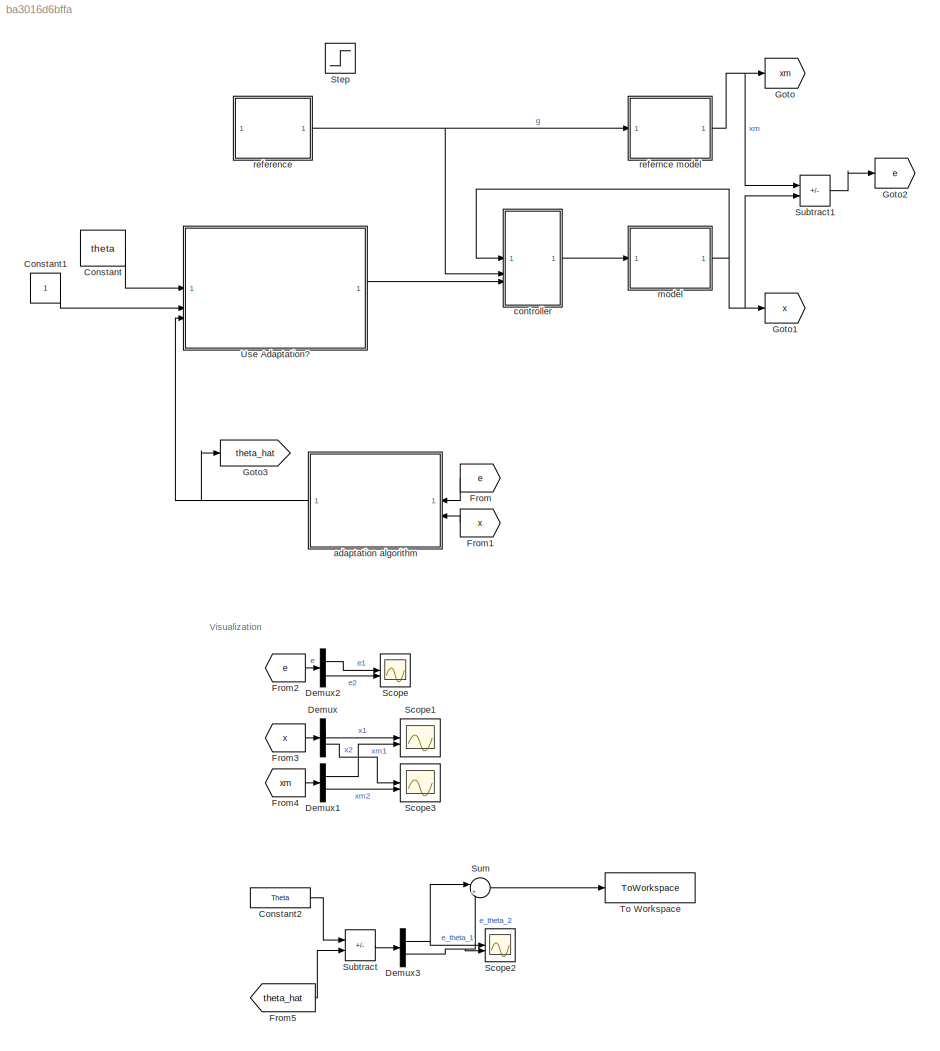
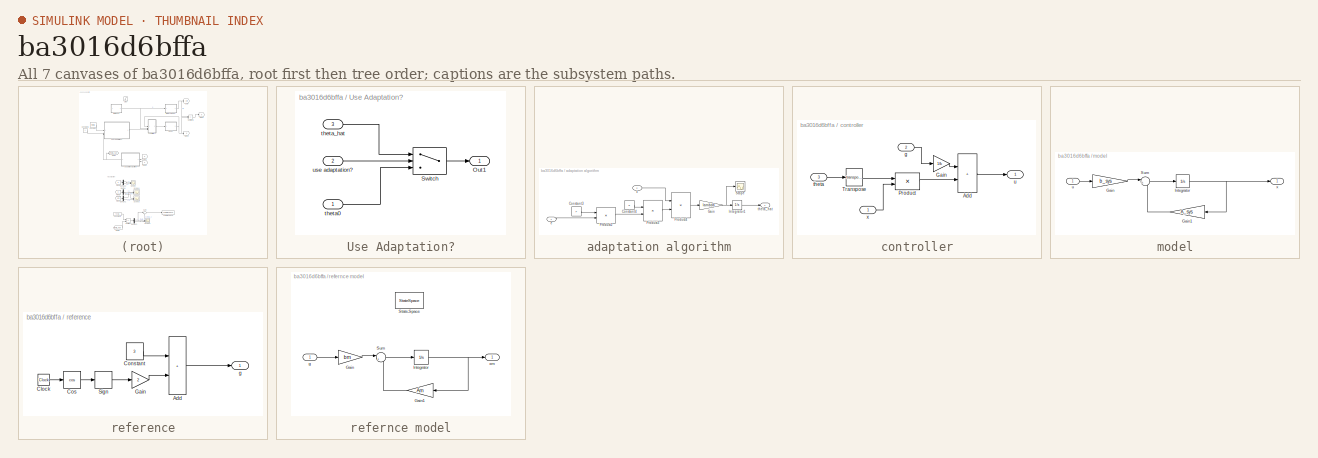
[diagram: thumbnail index - all 7 canvases of the model, root first then tree order]
MODEL slx_ba3016d6bffa
KIND model
CONFIG AbsTol = auto
CONFIG EnableMultiTasking = off
CONFIG FixedStep = auto
CONFIG MaxStep = auto
CONFIG MinStep = auto
CONFIG RelTol = 1e-3
CONFIG SampleTimeConstraint = Unconstrained
CONFIG SolverName = VariableStepAuto
CONFIG StartTime = 0.0
CONFIG StopTime = 50
BLOCK [Constant] Constant
  Value = theta
  VectorParams1D = off
BLOCK [Constant] Constant1
BLOCK [Constant] Constant2
  Value = Theta
BLOCK [Demux] Demux
  Outputs = 2
BLOCK [Demux] Demux1
  Outputs = 2
BLOCK [Demux] Demux2
  Outputs = 2
BLOCK [Demux] Demux3
  Outputs = 2
BLOCK [From] From
  GotoTag = e
BLOCK [From] From1
  GotoTag = x
BLOCK [From] From2
  GotoTag = e
BLOCK [From] From3
  GotoTag = x
BLOCK [From] From4
  GotoTag = xm
BLOCK [From] From5
  GotoTag = theta_hat
BLOCK [Goto] Goto
  GotoTag = xm
BLOCK [Goto] Goto1
  GotoTag = x
BLOCK [Goto] Goto2
  GotoTag = e
BLOCK [Goto] Goto3
  GotoTag = theta_hat
BLOCK [Scope] Scope
  Floating = off
  NumInputPorts = 2
  ScopeSpecificationString = Simulink.scopes.TimeScopeBlockCfg('CurrentConfiguration', extmgr.ConfigurationSet(extmgr.Configuration('Core','General UI',true),extmgr.Configuration('Core','Source UI',true),extmgr.Configuration('Sources','WiredSimulink',true),extmgr.Configuration('Visuals','Time Domain',true,'SerializedDisplays',{struct('MinYLimReal','-26.41296','MaxYLimReal','25.32409','YLabelReal','','MinYLimMag','0.00000','Ma...<+1409ch>
BLOCK [Scope] Scope1
  Floating = off
  NumInputPorts = 2
  ScopeSpecificationString = Simulink.scopes.TimeScopeBlockCfg('CurrentConfiguration', extmgr.ConfigurationSet(extmgr.Configuration('Core','General UI',true),extmgr.Configuration('Core','Source UI',true),extmgr.Configuration('Sources','WiredSimulink',true,'DataLoggingVariableName','ScopeData1'),extmgr.Configuration('Visuals','Time Domain',true,'SerializedDisplays',{struct('MinYLimReal','-0.63002','MaxYLimReal','5.67017','YLab...<+1461ch>
BLOCK [Scope] Scope2
  Floating = off
  NumInputPorts = 2
  ScopeSpecificationString = Simulink.scopes.TimeScopeBlockCfg('CurrentConfiguration', extmgr.ConfigurationSet(extmgr.Configuration('Core','General UI',true),extmgr.Configuration('Core','Source UI',true),extmgr.Configuration('Sources','WiredSimulink',true,'DataLoggingVariableName','ScopeData2'),extmgr.Configuration('Visuals','Time Domain',true,'SerializedDisplays',{struct('MinYLimReal','-1065.36069','MaxYLimReal','987.29403',...<+1471ch>
BLOCK [Scope] Scope3
  Floating = off
  NumInputPorts = 2
  ScopeSpecificationString = Simulink.scopes.TimeScopeBlockCfg('CurrentConfiguration', extmgr.ConfigurationSet(extmgr.Configuration('Core','General UI',true),extmgr.Configuration('Core','Source UI',true),extmgr.Configuration('Sources','WiredSimulink',true,'DataLoggingVariableName','ScopeData1'),extmgr.Configuration('Visuals','Time Domain',true,'SerializedDisplays',{struct('MinYLimReal','-55.79063','MaxYLimReal','66.09296','YL...<+1467ch>
BLOCK [Step] Step
  SampleTime = 0
  Time = 0
BLOCK [Sum] Subtract
  IconShape = rectangular
  Inputs = +-
BLOCK [Sum] Subtract1
  IconShape = rectangular
  Inputs = +-
BLOCK [Sum] Sum
  Inputs = |++
BLOCK [ToWorkspace] To Workspace
  FixptAsFi = on
  MaxDataPoints = inf
  SampleTime = -1
  SaveFormat = Timeseries
  VariableName = simout
BLOCK [SubSystem] Use Adaptation?
BLOCK [Outport] Use Adaptation?/Out1
BLOCK [Switch] Use Adaptation?/Switch
  Criteria = u2 > Threshold
  InputSameDT = off
  SaturateOnIntegerOverflow = off
  Threshold = 0.5
BLOCK [Inport] Use Adaptation?/theta0
BLOCK [Inport] Use Adaptation?/theta_hat
  Port = 3
BLOCK [Inport] Use Adaptation?/use adaptation?
  Port = 2
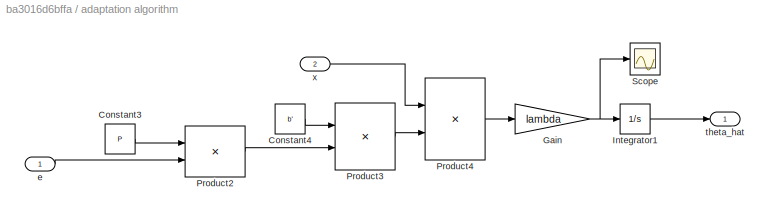
BLOCK [SubSystem] adaptation algorithm
BLOCK [Constant] adaptation algorithm/Constant3
  Value = P
  VectorParams1D = off
BLOCK [Constant] adaptation algorithm/Constant4
  Value = b'
  VectorParams1D = off
BLOCK [Gain] adaptation algorithm/Gain
  Gain = lambda
BLOCK [Integrator] adaptation algorithm/Integrator1
  InitialCondition = [0;0]
BLOCK [Product] adaptation algorithm/Product2
  Multiplication = Matrix(*)
BLOCK [Product] adaptation algorithm/Product3
  Multiplication = Matrix(*)
BLOCK [Product] adaptation algorithm/Product4
  Multiplication = Matrix(*)
BLOCK [Scope] adaptation algorithm/Scope
  Floating = off
  NumInputPorts = 1
  ScopeSpecificationString = Simulink.scopes.TimeScopeBlockCfg('CurrentConfiguration', extmgr.ConfigurationSet(extmgr.Configuration('Core','General UI',true),extmgr.Configuration('Core','Source UI',true),extmgr.Configuration('Sources','WiredSimulink',true,'DataLoggingVariableName','ScopeData2'),extmgr.Configuration('Visuals','Time Domain',true,'SerializedDisplays',{struct('MinYLimReal','-28373.26821','MaxYLimReal','24876.2488...<+1431ch>
BLOCK [Inport] adaptation algorithm/e
BLOCK [Outport] adaptation algorithm/theta_hat
  NameLocation = top
BLOCK [Inport] adaptation algorithm/x
  Port = 2
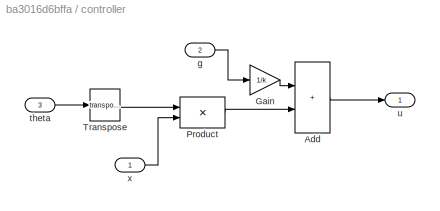
BLOCK [SubSystem] controller
BLOCK [Sum] controller/Add
  IconShape = rectangular
BLOCK [Gain] controller/Gain
  Gain = 1/k
BLOCK [Product] controller/Product
  Multiplication = Matrix(*)
BLOCK [Math] controller/Transpose
  Operator = transpose
BLOCK [Inport] controller/g
  Port = 2
BLOCK [Inport] controller/theta
  Port = 3
BLOCK [Outport] controller/u
BLOCK [Inport] controller/x
BLOCK [SubSystem] model
BLOCK [Gain] model/Gain
  Gain = b_sys
  Multiplication = Matrix(K*u)
BLOCK [Gain] model/Gain1
  Gain = A_sys
  Multiplication = Matrix(K*u)
BLOCK [Integrator] model/Integrator
  InitialCondition = [0;0]
BLOCK [Sum] model/Sum
  Inputs = |++
BLOCK [Inport] model/u
BLOCK [Outport] model/x
BLOCK [SubSystem] reference
BLOCK [Sum] reference/Add
  IconShape = rectangular
BLOCK [Clock] reference/Clock
BLOCK [Constant] reference/Constant
  Value = 3
BLOCK [Trigonometry] reference/Cos
  Operator = cos
BLOCK [Gain] reference/Gain
  Gain = 2
BLOCK [Signum] reference/Sign
BLOCK [Outport] reference/g
BLOCK [SubSystem] refernce model
BLOCK [Gain] refernce model/Gain
  Gain = bm
  Multiplication = Matrix(K*u)
BLOCK [Gain] refernce model/Gain1
  Gain = Am
  Multiplication = Matrix(K*u)
BLOCK [Integrator] refernce model/Integrator
  InitialCondition = [0;0]
BLOCK [StateSpace] refernce model/State-Space
  A = Am
  B = bm
  C = cm
  Commented = on
  D = 0
  InitialCondition = 0
BLOCK [Sum] refernce model/Sum
  Inputs = |++
BLOCK [Inport] refernce model/g
BLOCK [Outport] refernce model/xm
ANNOTATION (root): Visualization
LINE Constant1:1 -> Use Adaptation?:2
LINE Constant2:1 -> Subtract:1
LINE Constant:1 -> Use Adaptation?:1
LINE Demux1:1 -> Scope1:2
LINE Demux1:2 -> Scope3:2
LINE Demux2:1 -> Scope:1
LINE Demux2:2 -> Scope:2
NET Demux3:1 -> Scope2:1, Sum:1
NET Demux3:2 -> Scope2:2, Sum:2
LINE Demux:1 -> Scope1:1
LINE Demux:2 -> Scope3:1
LINE From1:1 -> adaptation algorithm:2
LINE From2:1 -> Demux2:1
LINE From3:1 -> Demux:1
LINE From4:1 -> Demux1:1
LINE From5:1 -> Subtract:2
LINE From:1 -> adaptation algorithm:1
LINE Subtract1:1 -> Goto2:1
LINE Subtract:1 -> Demux3:1
LINE Sum:1 -> To Workspace:1
LINE Use Adaptation?/Switch:1 -> Use Adaptation?/Out1:1
LINE Use Adaptation?/theta0:1 -> Use Adaptation?/Switch:3
LINE Use Adaptation?/theta_hat:1 -> Use Adaptation?/Switch:1
LINE Use Adaptation?/use adaptation?:1 -> Use Adaptation?/Switch:2
LINE Use Adaptation?:1 -> controller:3
LINE adaptation algorithm/Constant3:1 -> adaptation algorithm/Product2:1
LINE adaptation algorithm/Constant4:1 -> adaptation algorithm/Product3:1
NET adaptation algorithm/Gain:1 -> adaptation algorithm/Integrator1:1, adaptation algorithm/Scope:1
LINE adaptation algorithm/Integrator1:1 -> adaptation algorithm/theta_hat:1
LINE adaptation algorithm/Product2:1 -> adaptation algorithm/Product3:2
LINE adaptation algorithm/Product3:1 -> adaptation algorithm/Product4:2
LINE adaptation algorithm/Product4:1 -> adaptation algorithm/Gain:1
LINE adaptation algorithm/e:1 -> adaptation algorithm/Product2:2
LINE adaptation algorithm/x:1 -> adaptation algorithm/Product4:1
NET adaptation algorithm:1 -> Goto3:1, Use Adaptation?:3
LINE controller/Add:1 -> controller/u:1
LINE controller/Gain:1 -> controller/Add:1
LINE controller/Product:1 -> controller/Add:2
LINE controller/Transpose:1 -> controller/Product:1
LINE controller/g:1 -> controller/Gain:1
LINE controller/theta:1 -> controller/Transpose:1
LINE controller/x:1 -> controller/Product:2
LINE controller:1 -> model:1
LINE model/Gain1:1 -> model/Sum:2
LINE model/Gain:1 -> model/Sum:1
NET model/Integrator:1 -> model/Gain1:1, model/x:1
LINE model/Sum:1 -> model/Integrator:1
LINE model/u:1 -> model/Gain:1
NET model:1 -> Goto1:1, Subtract1:2, controller:1
LINE reference/Add:1 -> reference/g:1
LINE reference/Clock:1 -> reference/Cos:1
LINE reference/Constant:1 -> reference/Add:1
LINE reference/Cos:1 -> reference/Sign:1
LINE reference/Gain:1 -> reference/Add:2
LINE reference/Sign:1 -> reference/Gain:1
NET reference:1 -> controller:2, refernce model:1
LINE refernce model/Gain1:1 -> refernce model/Sum:2
LINE refernce model/Gain:1 -> refernce model/Sum:1
NET refernce model/Integrator:1 -> refernce model/Gain1:1, refernce model/xm:1
LINE refernce model/Sum:1 -> refernce model/Integrator:1
LINE refernce model/g:1 -> refernce model/Gain:1
NET refernce model:1 -> Goto:1, Subtract1:1
note: NET lines group one-source signal fan-out (src -> all destinations, sorted); 1:1 wires keep LINE
